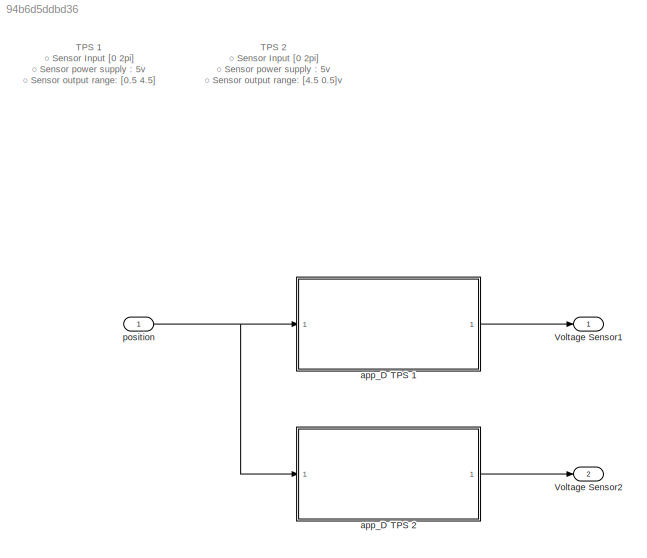
MODEL slx_94b6d5ddbd36
KIND model
CONFIG AbsTol = auto
CONFIG EnableMultiTasking = off
CONFIG FixedStep = auto
CONFIG MaxStep = auto
CONFIG MinStep = auto
CONFIG RelTol = 1e-3
CONFIG SampleTimeConstraint = Unconstrained
CONFIG SolverName = VariableStepAuto
CONFIG StartTime = 0.0
CONFIG StopTime = 10.0
BLOCK [Outport] Voltage Sensor1
BLOCK [Outport] Voltage Sensor2
  Port = 2
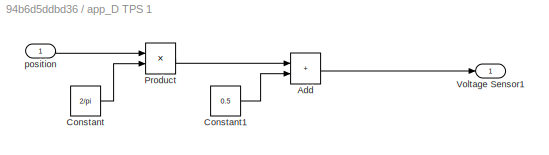
BLOCK [SubSystem] app_D TPS 1
BLOCK [Sum] app_D TPS 1/Add
  IconShape = rectangular
BLOCK [Constant] app_D TPS 1/Constant
  Value = 2/pi
BLOCK [Constant] app_D TPS 1/Constant1
  Value = 0.5
BLOCK [Product] app_D TPS 1/Product
BLOCK [Outport] app_D TPS 1/Voltage Sensor1
  NameLocation = right
BLOCK [Inport] app_D TPS 1/position
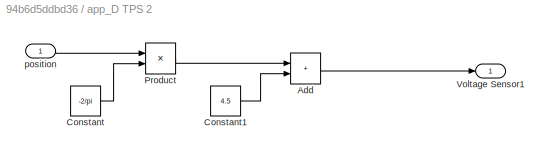
BLOCK [SubSystem] app_D TPS 2
BLOCK [Sum] app_D TPS 2/Add
  IconShape = rectangular
BLOCK [Constant] app_D TPS 2/Constant
  Value = -2/pi
BLOCK [Constant] app_D TPS 2/Constant1
  Value = 4.5
BLOCK [Product] app_D TPS 2/Product
BLOCK [Outport] app_D TPS 2/Voltage Sensor1
  NameLocation = right
BLOCK [Inport] app_D TPS 2/position
BLOCK [Inport] position
ANNOTATION (root): TPS 1 ○ Sensor Input [0 2pi] ○ Sensor power supply : 5v ○ Sensor output range: [0.5 4.5]
ANNOTATION (root): TPS 2 ○ Sensor Input [0 2pi] ○ Sensor power supply : 5v ○ Sensor output range: [4.5 0.5]v
LINE app_D TPS 1/Add:1 -> app_D TPS 1/Voltage Sensor1:1
LINE app_D TPS 1/Constant1:1 -> app_D TPS 1/Add:2
LINE app_D TPS 1/Constant:1 -> app_D TPS 1/Product:2
LINE app_D TPS 1/Product:1 -> app_D TPS 1/Add:1
LINE app_D TPS 1/position:1 -> app_D TPS 1/Product:1
LINE app_D TPS 1:1 -> Voltage Sensor1:1
LINE app_D TPS 2/Add:1 -> app_D TPS 2/Voltage Sensor1:1
LINE app_D TPS 2/Constant1:1 -> app_D TPS 2/Add:2
LINE app_D TPS 2/Constant:1 -> app_D TPS 2/Product:2
LINE app_D TPS 2/Product:1 -> app_D TPS 2/Add:1
LINE app_D TPS 2/position:1 -> app_D TPS 2/Product:1
LINE app_D TPS 2:1 -> Voltage Sensor2:1
NET position:1 -> app_D TPS 1:1, app_D TPS 2:1
note: NET lines group one-source signal fan-out (src -> all destinations, sorted); 1:1 wires keep LINE
